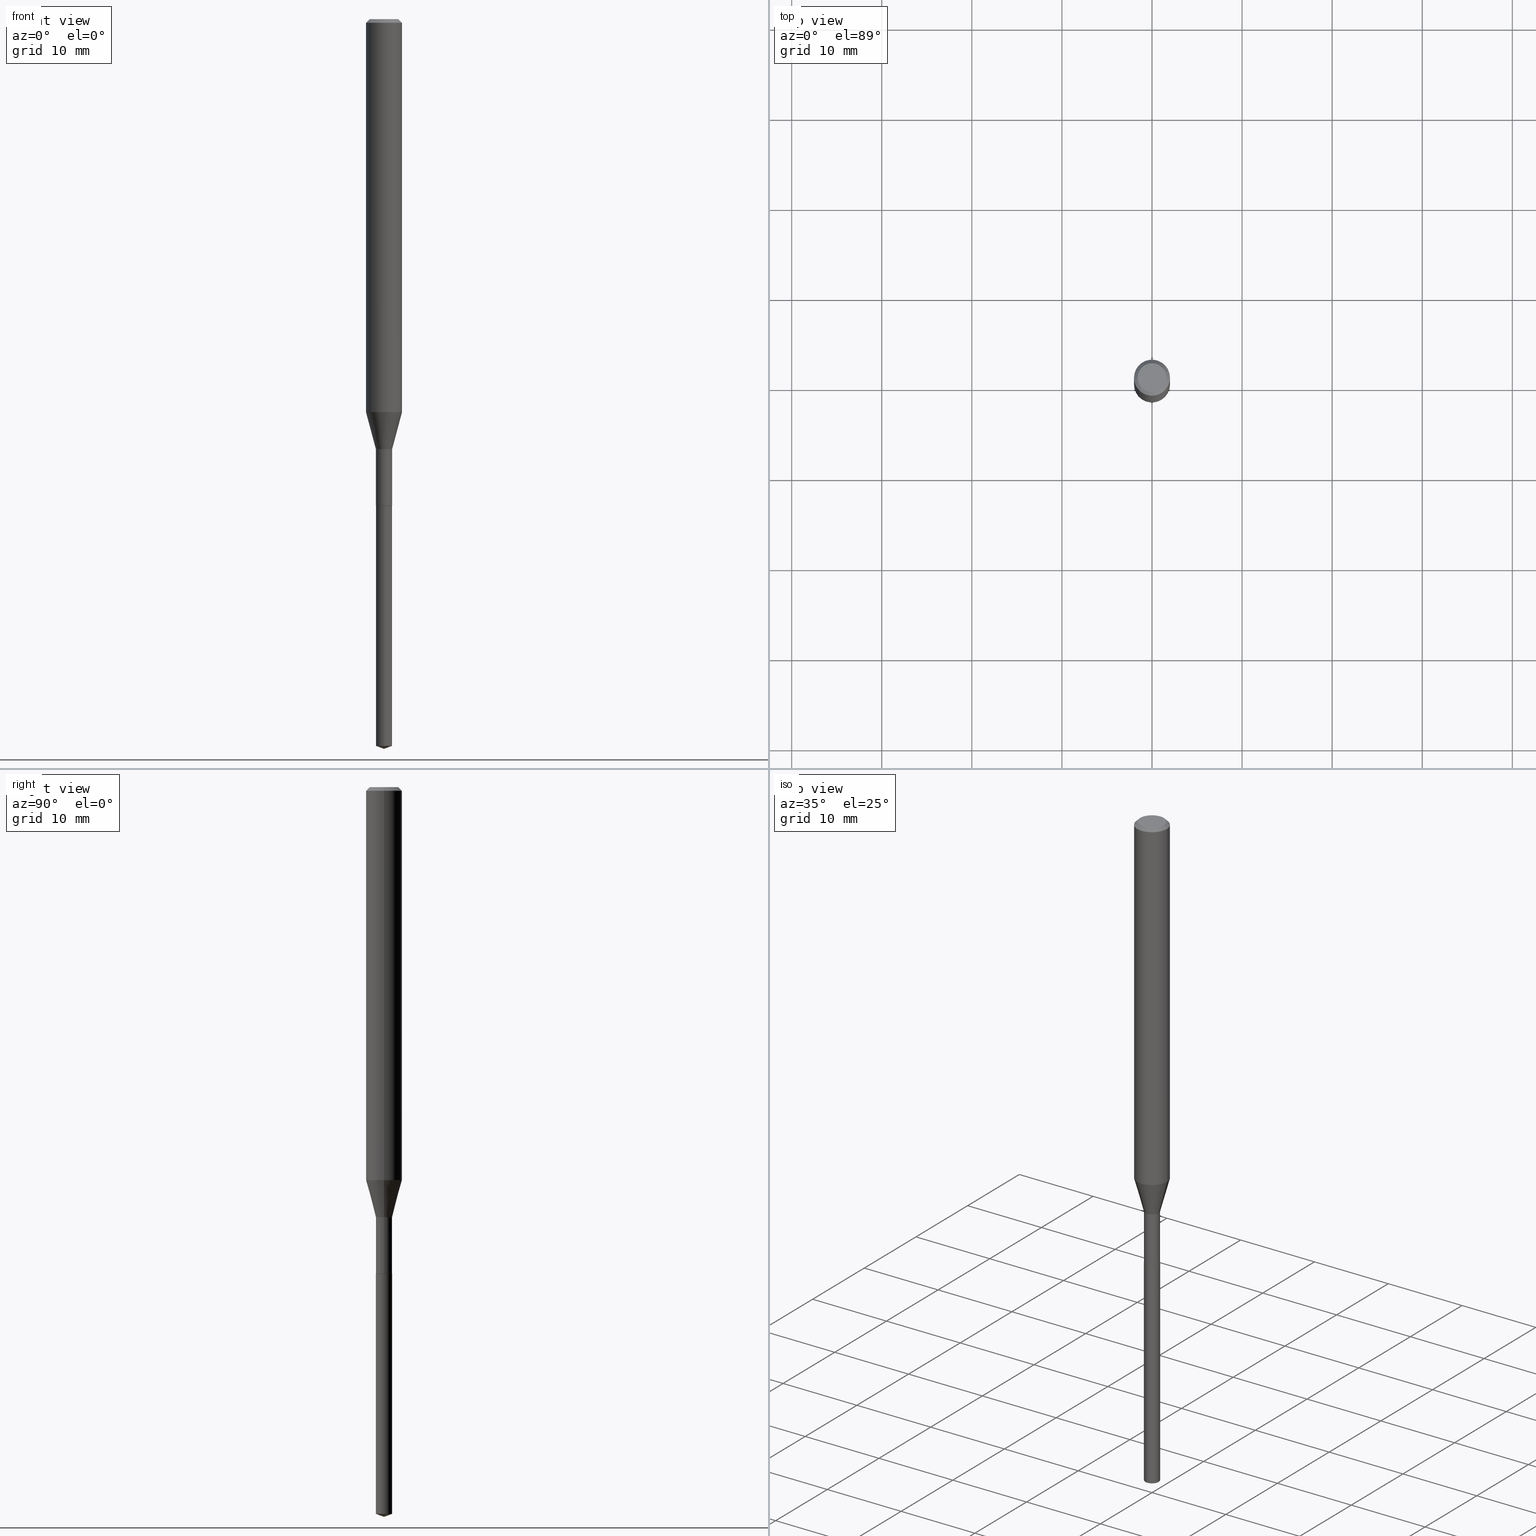
[diagram: canonical four-view strip — front | top / right | iso, engineering-drawing reading convention]
A machine part, canonical four-view strip (front | top / right | iso — engineering-drawing reading convention). The complete STEP part file that produces these views, byte-faithful:
ISO-10303-21;
HEADER;
FILE_DESCRIPTION (( 'STEP AP203' ),
    '1' );
FILE_NAME ('06039.STEP',
    '2024-04-23T19:06:44',
    ( '' ),
    ( '' ),
    'SwSTEP 2.0',
    'SolidWorks 2023',
    '' );
FILE_SCHEMA (( 'CONFIG_CONTROL_DESIGN' ));
ENDSEC;

DATA;
#1 = CARTESIAN_POINT ( 'NONE',  ( 7.798569626278917475E-29, -1.113437751929719726E-14, -3.189000000000000501 ) ) ;
#2 = DIRECTION ( 'NONE',  ( -2.445468806185136597E-29, 3.491481338843145583E-15, 1.000000000000000000 ) ) ;
#3 = EDGE_LOOP ( 'NONE', ( #345, #153, #28, #176 ) ) ;
#4 = APPROVAL_PERSON_ORGANIZATION ( #390, #434, #246 ) ;
#5 =( NAMED_UNIT ( * ) PLANE_ANGLE_UNIT ( ) SI_UNIT ( $, .RADIAN. ) );
#6 = CIRCLE ( 'NONE', #240, 0.03495000000000000190 ) ;
#7 = PERSON_AND_ORGANIZATION_ROLE ( 'design_supplier' ) ;
#8 = ORIENTED_EDGE ( 'NONE', *, *, #288, .F. ) ;
#9 = DATE_AND_TIME ( #321, #356 ) ;
#10 = DIRECTION ( 'NONE',  ( 1.000000000000000000, -6.982962677686255667E-15, 0.000000000000000000 ) ) ;
#11 = ADVANCED_FACE ( 'NONE', ( #355 ), #347, .T. ) ;
#12 = CC_DESIGN_DATE_AND_TIME_ASSIGNMENT ( #208, #425, ( #377 ) ) ;
#13 = CALENDAR_DATE ( 2024, 23, 4 ) ;
#14 = DIRECTION ( 'NONE',  ( 0.7071067811866169617, -2.468850131082983996E-15, 0.7071067811864780728 ) ) ;
#15 = VECTOR ( 'NONE', #14, 39.37007874015748143 ) ;
#16 = AXIS2_PLACEMENT_3D ( 'NONE', #324, #400, #214 ) ;
#17 = CIRCLE ( 'NONE', #16, 0.03545000000000000234 ) ;
#18 = COORDINATED_UNIVERSAL_TIME_OFFSET ( 5, 0, .BEHIND. ) ;
#19 = ORIENTED_EDGE ( 'NONE', *, *, #60, .T. ) ;
#20 = CARTESIAN_POINT ( 'NONE',  ( 0.03544999999999999540, -7.668689612635083799E-15, -2.125500000000000167 ) ) ;
#21 = CC_DESIGN_APPROVAL ( #46, ( #377 ) ) ;
#22 = CARTESIAN_POINT ( 'NONE',  ( 5.199066681949600871E-29, -7.422889326380528208E-15, -2.126000000000000334 ) ) ;
#23 = AXIS2_PLACEMENT_3D ( 'NONE', #158, #121, #165 ) ;
#24 = EDGE_LOOP ( 'NONE', ( #276, #480, #443 ) ) ;
#25 = ADVANCED_FACE ( 'NONE', ( #401 ), #364, .T. ) ;
#26 = CARTESIAN_POINT ( 'NONE',  ( 0.06300000000000000044, -5.137332111354472216E-16, -3.855188123712532709E-18 ) ) ;
#27 = CARTESIAN_POINT ( 'NONE',  ( 5.199066681949600871E-29, -7.422889326380528208E-15, -2.126000000000000334 ) ) ;
#28 = ORIENTED_EDGE ( 'NONE', *, *, #171, .T. ) ;
#29 = LOCAL_TIME ( 15, 6, 44.00000000000000000, #195 ) ;
#30 = APPROVAL_PERSON_ORGANIZATION ( #90, #46, #160 ) ;
#31 = EDGE_CURVE ( 'NONE', #243, #56, #285, .T. ) ;
#32 = DIRECTION ( 'NONE',  ( 1.000000000000000000, -6.982962677686265922E-15, 0.000000000000000000 ) ) ;
#33 = CARTESIAN_POINT ( 'NONE',  ( 5.199066681949600871E-29, -7.422889326380528208E-15, -2.126000000000000334 ) ) ;
#34 = ORIENTED_EDGE ( 'NONE', *, *, #139, .T. ) ;
#35 = FACE_OUTER_BOUND ( 'NONE', #242, .T. ) ;
#36 = DIRECTION ( 'NONE',  ( 2.445468806185136597E-29, -3.491481338843145583E-15, -1.000000000000000000 ) ) ;
#37 = DIRECTION ( 'NONE',  ( -2.445497401336110162E-29, 3.491440388959416459E-15, 1.000000000000000000 ) ) ;
#38 = CONICAL_SURFACE ( 'NONE', #459, 0.07875000000000000056, 0.7853981633974452814 ) ;
#39 = ORIENTED_EDGE ( 'NONE', *, *, #396, .T. ) ;
#40 = SHAPE_DEFINITION_REPRESENTATION ( #275, #405 ) ;
#41 = DIRECTION ( 'NONE',  ( 2.438088387897960049E-29, -3.491481338843145188E-15, -1.000000000000000000 ) ) ;
#42 = EDGE_CURVE ( 'NONE', #150, #181, #413, .T. ) ;
#43 = CARTESIAN_POINT ( 'NONE',  ( 0.07875000000000000056, -5.952550484112880131E-16, -0.01575000000000009726 ) ) ;
#44 = CIRCLE ( 'NONE', #196, 0.07875000000000022260 ) ;
#45 = VECTOR ( 'NONE', #72, 39.37007874015748143 ) ;
#46 = APPROVAL ( #314, 'UNSPECIFIED' ) ;
#47 = COORDINATED_UNIVERSAL_TIME_OFFSET ( 5, 0, .BEHIND. ) ;
#48 = LINE ( 'NONE', #429, #255 ) ;
#49 = APPLICATION_PROTOCOL_DEFINITION ( 'international standard', 'config_control_design', 1994, #374 ) ;
#50 = ORGANIZATION ( 'UNSPECIFIED', 'UNSPECIFIED', '' ) ;
#51 = VECTOR ( 'NONE', #217, 39.37007874015748143 ) ;
#52 = AXIS2_PLACEMENT_3D ( 'NONE', #96, #281, #430 ) ;
#53 = CARTESIAN_POINT ( 'NONE',  ( 0.07875000000000000056, -6.048991419545733705E-16, -0.01575000000000009726 ) ) ;
#54 = EDGE_CURVE ( 'NONE', #465, #181, #48, .T. ) ;
#55 = AXIS2_PLACEMENT_3D ( 'NONE', #269, #418, #234 ) ;
#56 = VERTEX_POINT ( 'NONE', #323 ) ;
#57 = DIRECTION ( 'NONE',  ( 1.000000000000000000, -6.982962677686267499E-15, 4.876176775795936353E-29 ) ) ;
#58 = CC_DESIGN_PERSON_AND_ORGANIZATION_ASSIGNMENT ( #473, #7, ( #119 ) ) ;
#59 = DIRECTION ( 'NONE',  ( 1.000000000000000000, -6.982962677686262766E-15, 0.000000000000000000 ) ) ;
#60 = EDGE_CURVE ( 'NONE', #290, #150, #92, .T. ) ;
#61 = LINE ( 'NONE', #412, #51 ) ;
#62 = CIRCLE ( 'NONE', #117, 0.03544999999999999540 ) ;
#63 = ORIENTED_EDGE ( 'NONE', *, *, #60, .F. ) ;
#64 = FACE_OUTER_BOUND ( 'NONE', #458, .T. ) ;
#65 = DIRECTION ( 'NONE',  ( 1.000000000000000000, -6.982962677686265922E-15, 4.876176775795935793E-29 ) ) ;
#66 = CARTESIAN_POINT ( 'NONE',  ( 0.03495000000000000190, -7.666943871965663085E-15, -2.126000000000000334 ) ) ;
#67 = LOCAL_TIME ( 15, 6, 44.00000000000000000, #76 ) ;
#68 = VECTOR ( 'NONE', #132, 39.37007874015748143 ) ;
#69 = ADVANCED_FACE ( 'NONE', ( #83 ), #38, .T. ) ;
#70 = VERTEX_POINT ( 'NONE', #247 ) ;
#71 = DIRECTION ( 'NONE',  ( -2.445468806185136597E-29, 3.491481338843145583E-15, 1.000000000000000000 ) ) ;
#72 = DIRECTION ( 'NONE',  ( -6.561838499445191385E-15, -0.9396926207859057634, 0.3420201433256756518 ) ) ;
#73 = VERTEX_POINT ( 'NONE', #354 ) ;
#74 = APPROVAL_STATUS ( 'not_yet_approved' ) ;
#75 = ORIENTED_EDGE ( 'NONE', *, *, #348, .F. ) ;
#76 = COORDINATED_UNIVERSAL_TIME_OFFSET ( 5, 0, .BEHIND. ) ;
#77 = CARTESIAN_POINT ( 'NONE',  ( 5.197843947546509191E-29, -7.421143585711107494E-15, -2.125500000000000167 ) ) ;
#78 = LOCAL_TIME ( 15, 6, 44.00000000000000000, #47 ) ;
#79 = ORIENTED_EDGE ( 'NONE', *, *, #311, .T. ) ;
#80 = VECTOR ( 'NONE', #218, 39.37007874015748854 ) ;
#81 = ORIENTED_EDGE ( 'NONE', *, *, #42, .F. ) ;
#82 = APPROVAL_ROLE ( '' ) ;
#83 = FACE_OUTER_BOUND ( 'NONE', #236, .T. ) ;
#84 = ORIENTED_EDGE ( 'NONE', *, *, #238, .F. ) ;
#85 = LINE ( 'NONE', #43, #197 ) ;
#86 = APPROVAL_DATE_TIME ( #202, #414 ) ;
#87 = PERSON ( 'UNSPECIFIED', 'UNSPECIFIED', 'UNSPECIFIED', ('UNSPECIFIED'), ('UNSPECIFIED'), ('UNSPECIFIED') ) ;
#88 = DIRECTION ( 'NONE',  ( -2.445468806185136597E-29, 3.491481338843145583E-15, 1.000000000000000000 ) ) ;
#89 = CARTESIAN_POINT ( 'NONE',  ( -0.07875000000000000056, 4.949174797810136167E-16, -0.01575000000000009726 ) ) ;
#90 = PERSON_AND_ORGANIZATION ( #87, #50 ) ;
#91 = ORIENTED_EDGE ( 'NONE', *, *, #258, .F. ) ;
#92 = CIRCLE ( 'NONE', #487, 0.06300000000000000044 ) ;
#93 = EDGE_CURVE ( 'NONE', #380, #213, #97, .T. ) ;
#94 = DIRECTION ( 'NONE',  ( -2.445497401336110162E-29, 3.491440388959416459E-15, 1.000000000000000000 ) ) ;
#95 = EDGE_CURVE ( 'NONE', #330, #465, #156, .T. ) ;
#96 = CARTESIAN_POINT ( 'NONE',  ( -8.848079482988326472E-28, 1.263239925700539114E-13, 36.18107874015748138 ) ) ;
#97 = CIRCLE ( 'NONE', #417, 0.03495000000000000190 ) ;
#98 = CARTESIAN_POINT ( 'NONE',  ( -2.475460269239261638E-16, -0.03545000000000742696, -2.126000000000000334 ) ) ;
#99 = ORIENTED_EDGE ( 'NONE', *, *, #116, .T. ) ;
#100 = CARTESIAN_POINT ( 'NONE',  ( 0.03544999999999996071, -6.808737758878017220E-15, -1.879200000000000204 ) ) ;
#101 = DIRECTION ( 'NONE',  ( -6.982962677686265922E-15, -1.000000000000000000, 0.000000000000000000 ) ) ;
#102 = LINE ( 'NONE', #260, #435 ) ;
#103 = ORIENTED_EDGE ( 'NONE', *, *, #54, .T. ) ;
#104 = DIRECTION ( 'NONE',  ( -2.438088387897960049E-29, 3.491481338843145188E-15, 1.000000000000000000 ) ) ;
#105 = LINE ( 'NONE', #266, #441 ) ;
#106 = AXIS2_PLACEMENT_3D ( 'NONE', #155, #337, #301 ) ;
#107 = APPLICATION_CONTEXT ( 'configuration controlled 3d designs of mechanical parts and assemblies' ) ;
#108 = ORIENTED_EDGE ( 'NONE', *, *, #448, .F. ) ;
#109 = DIRECTION ( 'NONE',  ( -2.445468806185136597E-29, 3.491481338843145583E-15, 1.000000000000000000 ) ) ;
#110 = DIRECTION ( 'NONE',  ( -2.445497401336110162E-29, 3.491440388959416459E-15, 1.000000000000000000 ) ) ;
#111 = ORIENTED_EDGE ( 'NONE', *, *, #403, .F. ) ;
#112 = EDGE_CURVE ( 'NONE', #150, #290, #135, .T. ) ;
#113 = DIRECTION ( 'NONE',  ( -2.445497401336110162E-29, 3.491440388959416459E-15, 1.000000000000000000 ) ) ;
#114 = DIRECTION ( 'NONE',  ( 1.000000000000000000, -6.982962677686265922E-15, 0.000000000000000000 ) ) ;
#115 = DIRECTION ( 'NONE',  ( -0.7071067811865453523, 2.468850131082234184E-15, -0.7071067811865496822 ) ) ;
#116 = EDGE_CURVE ( 'NONE', #254, #237, #394, .T. ) ;
#117 = AXIS2_PLACEMENT_3D ( 'NONE', #77, #241, #10 ) ;
#118 = FACE_OUTER_BOUND ( 'NONE', #161, .T. ) ;
#119 = PRODUCT_DEFINITION_FORMATION_WITH_SPECIFIED_SOURCE ( 'ANY', '', #232, .NOT_KNOWN. ) ;
#120 = ORIENTED_EDGE ( 'NONE', *, *, #328, .F. ) ;
#121 = DIRECTION ( 'NONE',  ( -2.445468806185136597E-29, 3.491481338843145583E-15, 1.000000000000000000 ) ) ;
#122 = APPLICATION_PROTOCOL_DEFINITION ( 'international standard', 'config_control_design', 1994, #107 ) ;
#123 = ADVANCED_FACE ( 'NONE', ( #283 ), #233, .T. ) ;
#124 = ORIENTED_EDGE ( 'NONE', *, *, #42, .T. ) ;
#125 = PERSON_AND_ORGANIZATION ( #87, #50 ) ;
#126 = CARTESIAN_POINT ( 'NONE',  ( -0.07875000000000022260, -5.437423624557511400E-15, -1.717602200032267268 ) ) ;
#127 = EDGE_LOOP ( 'NONE', ( #91, #201, #75 ) ) ;
#128 = PERSON_AND_ORGANIZATION_ROLE ( 'design_owner' ) ;
#129 = DIRECTION ( 'NONE',  ( 1.000000000000000000, -6.982962677686265922E-15, 4.875905316334701673E-29 ) ) ;
#130 = FACE_OUTER_BOUND ( 'NONE', #212, .T. ) ;
#131 = CALENDAR_DATE ( 2024, 23, 4 ) ;
#132 = DIRECTION ( 'NONE',  ( -2.445497401336109882E-29, 3.491440388959416459E-15, 1.000000000000000000 ) ) ;
#133 = ADVANCED_FACE ( 'NONE', ( #152 ), #317, .T. ) ;
#134 = AXIS2_PLACEMENT_3D ( 'NONE', #483, #141, #57 ) ;
#135 = CIRCLE ( 'NONE', #191, 0.06300000000000000044 ) ;
#136 = LINE ( 'NONE', #402, #80 ) ;
#137 = ORIENTED_EDGE ( 'NONE', *, *, #403, .T. ) ;
#138 = LENGTH_MEASURE_WITH_UNIT ( LENGTH_MEASURE( 0.02539999999999999897 ), #476 );
#139 = EDGE_CURVE ( 'NONE', #361, #482, #61, .T. ) ;
#140 =( CONVERSION_BASED_UNIT ( 'INCH', #138 ) LENGTH_UNIT ( ) NAMED_UNIT ( #227 ) );
#141 = DIRECTION ( 'NONE',  ( -2.445468806185136597E-29, 3.491481338843145583E-15, 1.000000000000000000 ) ) ;
#142 = CC_DESIGN_SECURITY_CLASSIFICATION ( #270, ( #119 ) ) ;
#143 = ORIENTED_EDGE ( 'NONE', *, *, #477, .T. ) ;
#144 = CARTESIAN_POINT ( 'NONE',  ( 5.199066681949600871E-29, -7.422889326380528208E-15, -2.126000000000000334 ) ) ;
#145 = EDGE_CURVE ( 'NONE', #286, #254, #256, .T. ) ;
#146 = DIRECTION ( 'NONE',  ( -2.445468806185136597E-29, 3.491481338843145583E-15, 1.000000000000000000 ) ) ;
#147 = EDGE_LOOP ( 'NONE', ( #79, #103, #469, #239 ) ) ;
#148 = CLOSED_SHELL ( 'NONE', ( #334, #272, #257, #229, #264 ) ) ;
#149 = DIRECTION ( 'NONE',  ( 1.000000000000000000, -6.982962677686265133E-15, 4.876176775795935793E-29 ) ) ;
#150 = VERTEX_POINT ( 'NONE', #154 ) ;
#151 = EDGE_CURVE ( 'NONE', #213, #380, #6, .T. ) ;
#152 = FACE_OUTER_BOUND ( 'NONE', #183, .T. ) ;
#153 = ORIENTED_EDGE ( 'NONE', *, *, #439, .T. ) ;
#154 = CARTESIAN_POINT ( 'NONE',  ( -0.06300000000000000044, 4.674220642376242452E-16, -3.855188123719040041E-18 ) ) ;
#155 = CARTESIAN_POINT ( 'NONE',  ( 7.767076790679798130E-29, -1.108924129550469119E-14, -3.176097255195263092 ) ) ;
#156 = LINE ( 'NONE', #385, #307 ) ;
#157 = ORIENTED_EDGE ( 'NONE', *, *, #116, .F. ) ;
#158 = CARTESIAN_POINT ( 'NONE',  ( 5.197843947546509191E-29, -7.421143585711107494E-15, -2.125500000000000167 ) ) ;
#159 = AXIS2_PLACEMENT_3D ( 'NONE', #446, #113, #101 ) ;
#160 = APPROVAL_ROLE ( '' ) ;
#161 = EDGE_LOOP ( 'NONE', ( #423, #19 ) ) ;
#162 = DIRECTION ( 'NONE',  ( -2.445468806185136597E-29, 3.491481338843145583E-15, 1.000000000000000000 ) ) ;
#163 = SECURITY_CLASSIFICATION_LEVEL ( 'unclassified' ) ;
#164 = DIRECTION ( 'NONE',  ( 1.000000000000000000, -6.982962677686262766E-15, 0.000000000000000000 ) ) ;
#165 = DIRECTION ( 'NONE',  ( 1.000000000000000000, -6.982962677686255667E-15, 0.000000000000000000 ) ) ;
#166 = CIRCLE ( 'NONE', #404, 0.03544999999999996071 ) ;
#167 = PERSON_AND_ORGANIZATION ( #87, #50 ) ;
#168 = DIRECTION ( 'NONE',  ( -1.000000000000000000, 6.982962677686265922E-15, 0.000000000000000000 ) ) ;
#169 = ORIENTED_EDGE ( 'NONE', *, *, #311, .F. ) ;
#170 = DIRECTION ( 'NONE',  ( -2.445468806185136597E-29, 3.491481338843145583E-15, 1.000000000000000000 ) ) ;
#171 = EDGE_CURVE ( 'NONE', #243, #73, #449, .T. ) ;
#172 = CIRCLE ( 'NONE', #478, 0.07875000000000022260 ) ;
#173 = DIRECTION ( 'NONE',  ( -0.7071067811866169617, 7.493145998870605018E-15, 0.7071067811864780728 ) ) ;
#174 = DIRECTION ( 'NONE',  ( 1.000000000000000000, -6.982962677686267499E-15, 0.000000000000000000 ) ) ;
#175 = PRODUCT_RELATED_PRODUCT_CATEGORY ( 'detail', '', ( #232 ) ) ;
#176 = ORIENTED_EDGE ( 'NONE', *, *, #182, .F. ) ;
#177 = CARTESIAN_POINT ( 'NONE',  ( 3.851613369741614361E-31, -5.499083108677988307E-17, -0.01575000000000009726 ) ) ;
#178 = DIRECTION ( 'NONE',  ( -2.445497401336110162E-29, 3.491440388959416459E-15, 1.000000000000000000 ) ) ;
#179 = AXIS2_PLACEMENT_3D ( 'NONE', #393, #428, #277 ) ;
#180 = AXIS2_PLACEMENT_3D ( 'NONE', #177, #331, #315 ) ;
#181 = VERTEX_POINT ( 'NONE', #336 ) ;
#182 = EDGE_CURVE ( 'NONE', #330, #73, #166, .T. ) ;
#183 = EDGE_LOOP ( 'NONE', ( #63, #421, #224, #81 ) ) ;
#184 = CYLINDRICAL_SURFACE ( 'NONE', #211, 0.03544999999999998153 ) ;
#185 = ORIENTED_EDGE ( 'NONE', *, *, #467, .T. ) ;
#186 = ADVANCED_FACE ( 'NONE', ( #375 ), #410, .T. ) ;
#187 = DIRECTION ( 'NONE',  ( -2.445468806185136877E-29, 3.491481338843145188E-15, 1.000000000000000000 ) ) ;
#188 = DIRECTION ( 'NONE',  ( -2.445468806185136597E-29, 3.491481338843145583E-15, 1.000000000000000000 ) ) ;
#189 = ORIENTED_EDGE ( 'NONE', *, *, #95, .T. ) ;
#190 = CC_DESIGN_PERSON_AND_ORGANIZATION_ASSIGNMENT ( #350, #352, ( #377 ) ) ;
#191 = AXIS2_PLACEMENT_3D ( 'NONE', #472, #304, #129 ) ;
#192 = DIRECTION ( 'NONE',  ( -2.445468806185136597E-29, 3.491481338843145583E-15, 1.000000000000000000 ) ) ;
#193 = ORIENTED_EDGE ( 'NONE', *, *, #151, .F. ) ;
#194 = CARTESIAN_POINT ( 'NONE',  ( -2.475460269239261638E-16, -0.03545000000000742696, -2.126000000000000334 ) ) ;
#195 = COORDINATED_UNIVERSAL_TIME_OFFSET ( 5, 0, .BEHIND. ) ;
#196 = AXIS2_PLACEMENT_3D ( 'NONE', #203, #88, #32 ) ;
#197 = VECTOR ( 'NONE', #475, 39.37007874015748143 ) ;
#198 =( NAMED_UNIT ( * ) SI_UNIT ( $, .STERADIAN. ) SOLID_ANGLE_UNIT ( ) );
#199 = ORIENTED_EDGE ( 'NONE', *, *, #238, .T. ) ;
#200 = ORIENTED_EDGE ( 'NONE', *, *, #396, .F. ) ;
#201 = ORIENTED_EDGE ( 'NONE', *, *, #145, .T. ) ;
#202 = DATE_AND_TIME ( #131, #78 ) ;
#203 = CARTESIAN_POINT ( 'NONE',  ( 4.200342601613872805E-29, -5.996976028968592568E-15, -1.717602200032267268 ) ) ;
#204 = DIRECTION ( 'NONE',  ( 1.000000000000000000, -6.982962677686265922E-15, 4.875905316334701673E-29 ) ) ;
#205 = ORIENTED_EDGE ( 'NONE', *, *, #244, .F. ) ;
#206 = AXIS2_PLACEMENT_3D ( 'NONE', #353, #162, #164 ) ;
#207 = EDGE_CURVE ( 'NONE', #56, #330, #105, .T. ) ;
#208 = DATE_AND_TIME ( #13, #67 ) ;
#209 = CARTESIAN_POINT ( 'NONE',  ( 0.03495000000000000190, -7.666943871965663085E-15, -2.126000000000000334 ) ) ;
#210 = DIRECTION ( 'NONE',  ( 1.000000000000000000, -6.982962677686267499E-15, 0.000000000000000000 ) ) ;
#211 = AXIS2_PLACEMENT_3D ( 'NONE', #293, #146, #411 ) ;
#212 = EDGE_LOOP ( 'NONE', ( #245, #199 ) ) ;
#213 = VERTEX_POINT ( 'NONE', #453 ) ;
#214 = DIRECTION ( 'NONE',  ( -6.982962677686265922E-15, -1.000000000000000000, 0.000000000000000000 ) ) ;
#215 = ADVANCED_FACE ( 'NONE', ( #369 ), #184, .T. ) ;
#216 = DIRECTION ( 'NONE',  ( -2.445468806185136597E-29, 3.491481338843145583E-15, 1.000000000000000000 ) ) ;
#217 = DIRECTION ( 'NONE',  ( -2.445468806185136877E-29, 3.491481338843145188E-15, 1.000000000000000000 ) ) ;
#218 = DIRECTION ( 'NONE',  ( 6.676917655467957874E-15, 0.9396926207859082059, 0.3420201433256690460 ) ) ;
#219 = CARTESIAN_POINT ( 'NONE',  ( 7.798691212860857286E-29, -1.113420340039158063E-14, -3.189000000000000501 ) ) ;
#220 = CARTESIAN_POINT ( 'NONE',  ( 4.595524980583109418E-29, -6.561191731954039337E-15, -1.879200000000000204 ) ) ;
#221 = PLANE ( 'NONE',  #373 ) ;
#222 = ADVANCED_FACE ( 'NONE', ( #64 ), #228, .T. ) ;
#223 = CARTESIAN_POINT ( 'NONE',  ( 5.199066681949600871E-29, -7.422889326380528208E-15, -2.126000000000000334 ) ) ;
#224 = ORIENTED_EDGE ( 'NONE', *, *, #306, .T. ) ;
#225 = CC_DESIGN_APPROVAL ( #414, ( #119 ) ) ;
#226 = VECTOR ( 'NONE', #115, 39.37007874015748143 ) ;
#227 = DIMENSIONAL_EXPONENTS ( 1.000000000000000000, 0.000000000000000000, 0.000000000000000000, 0.000000000000000000, 0.000000000000000000, 0.000000000000000000, 0.000000000000000000 ) ;
#228 = CYLINDRICAL_SURFACE ( 'NONE', #235, 0.03544999999999998153 ) ;
#229 = ADVANCED_FACE ( 'NONE', ( #35 ), #299, .T. ) ;
#230 = CARTESIAN_POINT ( 'NONE',  ( -0.03544999999999996071, -6.739280259005617242E-15, -1.879200000000000204 ) ) ;
#231 = DIRECTION ( 'NONE',  ( -2.445468806185136597E-29, 3.491481338843145583E-15, 1.000000000000000000 ) ) ;
#232 = PRODUCT ( '06039', '06039', '', ( #318 ) ) ;
#233 = CYLINDRICAL_SURFACE ( 'NONE', #372, 0.07875000000000011158 ) ;
#234 = DIRECTION ( 'NONE',  ( 1.000000000000000000, -6.982962677686262766E-15, 0.000000000000000000 ) ) ;
#235 = AXIS2_PLACEMENT_3D ( 'NONE', #485, #231, #149 ) ;
#236 = EDGE_LOOP ( 'NONE', ( #205, #436, #124, #39 ) ) ;
#237 = VERTEX_POINT ( 'NONE', #98 ) ;
#238 = EDGE_CURVE ( 'NONE', #70, #237, #389, .T. ) ;
#239 = ORIENTED_EDGE ( 'NONE', *, *, #139, .F. ) ;
#240 = AXIS2_PLACEMENT_3D ( 'NONE', #454, #109, #174 ) ;
#241 = DIRECTION ( 'NONE',  ( -2.445468806185136597E-29, 3.491481338843145583E-15, 1.000000000000000000 ) ) ;
#242 = EDGE_LOOP ( 'NONE', ( #294, #300, #99, #84 ) ) ;
#243 = VERTEX_POINT ( 'NONE', #20 ) ;
#244 = EDGE_CURVE ( 'NONE', #290, #482, #85, .T. ) ;
#245 = ORIENTED_EDGE ( 'NONE', *, *, #328, .T. ) ;
#246 = APPROVAL_ROLE ( '' ) ;
#247 = CARTESIAN_POINT ( 'NONE',  ( 2.518873998270333339E-16, 0.03544999999999258466, -2.126000000000000334 ) ) ;
#248 = CC_DESIGN_PERSON_AND_ORGANIZATION_ASSIGNMENT ( #167, #462, ( #270 ) ) ;
#249 = AXIS2_PLACEMENT_3D ( 'NONE', #22, #366, #481 ) ;
#250 = VECTOR ( 'NONE', #187, 39.37007874015748143 ) ;
#251 =( GEOMETRIC_REPRESENTATION_CONTEXT ( 3 ) GLOBAL_UNCERTAINTY_ASSIGNED_CONTEXT ( ( #325 ) ) GLOBAL_UNIT_ASSIGNED_CONTEXT ( ( #140, #5, #198 ) ) REPRESENTATION_CONTEXT ( 'NONE', 'WORKASPACE' ) );
#252 = EDGE_CURVE ( 'NONE', #254, #387, #17, .T. ) ;
#253 = CARTESIAN_POINT ( 'NONE',  ( 4.595524980583109418E-29, -6.561191731954039337E-15, -1.879200000000000204 ) ) ;
#254 = VERTEX_POINT ( 'NONE', #440 ) ;
#255 = VECTOR ( 'NONE', #460, 39.37007874015748143 ) ;
#256 = LINE ( 'NONE', #1, #45 ) ;
#257 = ADVANCED_FACE ( 'NONE', ( #320 ), #452, .T. ) ;
#258 = EDGE_CURVE ( 'NONE', #286, #387, #136, .T. ) ;
#259 = DIRECTION ( 'NONE',  ( -6.982962677686265922E-15, -1.000000000000000000, 0.000000000000000000 ) ) ;
#260 = CARTESIAN_POINT ( 'NONE',  ( 2.518873998270074987E-16, 0.03544999999999257773, -2.126000000000000334 ) ) ;
#261 = CARTESIAN_POINT ( 'NONE',  ( 0.03544999999999998153, -2.475460269239779821E-16, 1.728604667019658389E-30 ) ) ;
#262 = DIRECTION ( 'NONE',  ( -2.445468806185136597E-29, 3.491481338843145583E-15, 1.000000000000000000 ) ) ;
#263 = CIRCLE ( 'NONE', #180, 0.07875000000000000056 ) ;
#264 = ADVANCED_FACE ( 'NONE', ( #130 ), #362, .F. ) ;
#265 = AXIS2_PLACEMENT_3D ( 'NONE', #316, #267, #333 ) ;
#266 = CARTESIAN_POINT ( 'NONE',  ( -0.03544999999999998153, 2.518873998269553846E-16, -1.743762489495363038E-30 ) ) ;
#267 = DIRECTION ( 'NONE',  ( 2.445468806185136597E-29, -3.491481338843145583E-15, -1.000000000000000000 ) ) ;
#268 = CARTESIAN_POINT ( 'NONE',  ( -0.03495000000000000190, -7.174554640232372933E-15, -2.126000000000000334 ) ) ;
#269 = CARTESIAN_POINT ( 'NONE',  ( 4.595524980583109418E-29, -6.561191731954039337E-15, -1.879200000000000204 ) ) ;
#270 = SECURITY_CLASSIFICATION ( '', '', #163 ) ;
#271 = PLANE ( 'NONE',  #419 ) ;
#272 = ADVANCED_FACE ( 'NONE', ( #287 ), #395, .T. ) ;
#273 = APPROVAL_STATUS ( 'not_yet_approved' ) ;
#274 = ORIENTED_EDGE ( 'NONE', *, *, #477, .F. ) ;
#275 = PRODUCT_DEFINITION_SHAPE ( 'NONE', 'NONE',  #377 ) ;
#276 = ORIENTED_EDGE ( 'NONE', *, *, #145, .F. ) ;
#277 = DIRECTION ( 'NONE',  ( 1.000000000000000000, 0.000000000000000000, 0.000000000000000000 ) ) ;
#278 = ORIENTED_EDGE ( 'NONE', *, *, #182, .T. ) ;
#279 = ADVANCED_FACE ( 'NONE', ( #292 ), #406, .T. ) ;
#280 = CALENDAR_DATE ( 2024, 23, 4 ) ;
#281 = DIRECTION ( 'NONE',  ( -2.445497401336110162E-29, 3.491440388959416459E-15, 1.000000000000000000 ) ) ;
#282 = FACE_OUTER_BOUND ( 'NONE', #399, .T. ) ;
#283 = FACE_OUTER_BOUND ( 'NONE', #147, .T. ) ;
#284 = DIRECTION ( 'NONE',  ( -6.982962677686266711E-15, -1.000000000000000000, 3.475157955500771490E-15 ) ) ;
#285 = CIRCLE ( 'NONE', #23, 0.03544999999999999540 ) ;
#286 = VERTEX_POINT ( 'NONE', #219 ) ;
#287 = FACE_OUTER_BOUND ( 'NONE', #24, .T. ) ;
#288 = EDGE_CURVE ( 'NONE', #73, #361, #445, .T. ) ;
#289 = LOCAL_TIME ( 15, 6, 44.00000000000000000, #470 ) ;
#290 = VERTEX_POINT ( 'NONE', #26 ) ;
#291 = AXIS2_PLACEMENT_3D ( 'NONE', #27, #178, #447 ) ;
#292 = FACE_OUTER_BOUND ( 'NONE', #392, .T. ) ;
#293 = CARTESIAN_POINT ( 'NONE',  ( 0.000000000000000000, 0.000000000000000000, 0.000000000000000000 ) ) ;
#294 = ORIENTED_EDGE ( 'NONE', *, *, #467, .F. ) ;
#295 = ORIENTED_EDGE ( 'NONE', *, *, #93, .T. ) ;
#296 = EDGE_LOOP ( 'NONE', ( #426, #343, #143, #367 ) ) ;
#297 = APPROVAL_PERSON_ORGANIZATION ( #344, #414, #82 ) ;
#298 = AXIS2_PLACEMENT_3D ( 'NONE', #327, #94, #284 ) ;
#299 = CYLINDRICAL_SURFACE ( 'NONE', #479, 0.03545000000000000234 ) ;
#300 = ORIENTED_EDGE ( 'NONE', *, *, #348, .T. ) ;
#301 = DIRECTION ( 'NONE',  ( -6.982962677686265922E-15, -1.000000000000000000, 0.000000000000000000 ) ) ;
#302 = CARTESIAN_POINT ( 'NONE',  ( 2.518873998270331367E-16, 0.03544999999998890705, -3.176097255195263092 ) ) ;
#303 = ORIENTED_EDGE ( 'NONE', *, *, #448, .T. ) ;
#304 = DIRECTION ( 'NONE',  ( -2.445468806185136597E-29, 3.491481338843145583E-15, 1.000000000000000000 ) ) ;
#305 = DIRECTION ( 'NONE',  ( 1.000000000000000000, -6.982962677686265922E-15, 0.000000000000000000 ) ) ;
#306 = EDGE_CURVE ( 'NONE', #482, #181, #263, .T. ) ;
#307 = VECTOR ( 'NONE', #474, 39.37007874015747433 ) ;
#308 = CC_DESIGN_APPROVAL ( #434, ( #270 ) ) ;
#309 = CARTESIAN_POINT ( 'NONE',  ( 3.851613369741614361E-31, -5.499083108677988307E-17, -0.01575000000000009726 ) ) ;
#310 = DATE_AND_TIME ( #432, #289 ) ;
#311 = EDGE_CURVE ( 'NONE', #361, #465, #44, .T. ) ;
#312 = ORIENTED_EDGE ( 'NONE', *, *, #171, .F. ) ;
#313 = EDGE_LOOP ( 'NONE', ( #303, #189, #169, #8 ) ) ;
#314 = APPROVAL_STATUS ( 'not_yet_approved' ) ;
#315 = DIRECTION ( 'NONE',  ( 1.000000000000000000, -6.982962677686265922E-15, 0.000000000000000000 ) ) ;
#316 = CARTESIAN_POINT ( 'NONE',  ( 3.851613369741614361E-31, -5.499083108677988307E-17, -0.01575000000000009726 ) ) ;
#317 = CONICAL_SURFACE ( 'NONE', #265, 0.07875000000000000056, 0.7853981633974452814 ) ;
#318 = MECHANICAL_CONTEXT ( 'NONE', #107, 'mechanical' ) ;
#319 = CARTESIAN_POINT ( 'NONE',  ( 5.199066681949600871E-29, -7.422889326380528208E-15, -2.126000000000000334 ) ) ;
#320 = FACE_OUTER_BOUND ( 'NONE', #127, .T. ) ;
#321 = CALENDAR_DATE ( 2024, 23, 4 ) ;
#322 = CARTESIAN_POINT ( 'NONE',  ( 5.199066681949600871E-29, -7.422889326380528208E-15, -2.126000000000000334 ) ) ;
#323 = CARTESIAN_POINT ( 'NONE',  ( -0.03544999999999999540, -6.739280259005617242E-15, -2.125500000000000167 ) ) ;
#324 = CARTESIAN_POINT ( 'NONE',  ( 7.767076790679798130E-29, -1.108924129550469119E-14, -3.176097255195263092 ) ) ;
#325 = UNCERTAINTY_MEASURE_WITH_UNIT (LENGTH_MEASURE( 1.000000000000000082E-05 ), #140, 'distance_accuracy_value', 'NONE');
#326 = DIRECTION ( 'NONE',  ( 1.000000000000000000, -6.982962677686262766E-15, 0.000000000000000000 ) ) ;
#327 = CARTESIAN_POINT ( 'NONE',  ( -8.848079482988326472E-28, 1.263239925700539114E-13, 36.18107874015748138 ) ) ;
#328 = EDGE_CURVE ( 'NONE', #237, #70, #363, .T. ) ;
#329 = CC_DESIGN_PERSON_AND_ORGANIZATION_ASSIGNMENT ( #422, #357, ( #119 ) ) ;
#330 = VERTEX_POINT ( 'NONE', #230 ) ;
#331 = DIRECTION ( 'NONE',  ( -2.445468806185136597E-29, 3.491481338843145583E-15, 1.000000000000000000 ) ) ;
#332 = VECTOR ( 'NONE', #368, 39.37007874015747433 ) ;
#333 = DIRECTION ( 'NONE',  ( -1.000000000000000000, 6.982962677686265922E-15, 0.000000000000000000 ) ) ;
#334 = ADVANCED_FACE ( 'NONE', ( #381 ), #341, .T. ) ;
#335 = DIRECTION ( 'NONE',  ( -2.445497401336109882E-29, 3.491440388959416459E-15, 1.000000000000000000 ) ) ;
#336 = CARTESIAN_POINT ( 'NONE',  ( -0.07875000000000000056, -2.466431025616605177E-15, -0.01575000000000009726 ) ) ;
#337 = DIRECTION ( 'NONE',  ( -2.445497401336110162E-29, 3.491440388959416459E-15, 1.000000000000000000 ) ) ;
#338 = DIRECTION ( 'NONE',  ( -2.445468806185136597E-29, 3.491481338843145583E-15, 1.000000000000000000 ) ) ;
#339 = DIRECTION ( 'NONE',  ( 1.000000000000000000, -6.982962677686267499E-15, 0.000000000000000000 ) ) ;
#340 = ORIENTED_EDGE ( 'NONE', *, *, #54, .F. ) ;
#341 = CYLINDRICAL_SURFACE ( 'NONE', #407, 0.03545000000000000234 ) ;
#342 = ADVANCED_FACE ( 'NONE', ( #490 ), #221, .F. ) ;
#343 = ORIENTED_EDGE ( 'NONE', *, *, #151, .T. ) ;
#344 = PERSON_AND_ORGANIZATION ( #87, #50 ) ;
#345 = ORIENTED_EDGE ( 'NONE', *, *, #207, .F. ) ;
#346 = CONICAL_SURFACE ( 'NONE', #438, 0.03495000000000000190, 0.7853981633975465337 ) ;
#347 = CONICAL_SURFACE ( 'NONE', #468, 0.03544999999999996071, 0.2617993877991500740 ) ;
#348 = EDGE_CURVE ( 'NONE', #387, #254, #397, .T. ) ;
#349 = DATE_AND_TIME ( #280, #29 ) ;
#350 = PERSON_AND_ORGANIZATION ( #87, #50 ) ;
#351 = ORIENTED_EDGE ( 'NONE', *, *, #359, .T. ) ;
#352 = PERSON_AND_ORGANIZATION_ROLE ( 'creator' ) ;
#353 = CARTESIAN_POINT ( 'NONE',  ( 4.595524980583109418E-29, -6.561191731954039337E-15, -1.879200000000000204 ) ) ;
#354 = CARTESIAN_POINT ( 'NONE',  ( 0.03544999999999996071, -6.808737758878017220E-15, -1.879200000000000204 ) ) ;
#355 = FACE_OUTER_BOUND ( 'NONE', #313, .T. ) ;
#356 = LOCAL_TIME ( 15, 6, 44.00000000000000000, #18 ) ;
#357 = PERSON_AND_ORGANIZATION_ROLE ( 'creator' ) ;
#358 = CARTESIAN_POINT ( 'NONE',  ( 3.851613369741614361E-31, -5.499083108677988307E-17, -0.01575000000000009726 ) ) ;
#359 = EDGE_CURVE ( 'NONE', #213, #56, #455, .T. ) ;
#360 = ORIENTED_EDGE ( 'NONE', *, *, #288, .T. ) ;
#361 = VERTEX_POINT ( 'NONE', #408 ) ;
#362 = PLANE ( 'NONE',  #249 ) ;
#363 = CIRCLE ( 'NONE', #159, 0.03545000000000000234 ) ;
#364 = CONICAL_SURFACE ( 'NONE', #55, 0.03544999999999996071, 0.2617993877991500740 ) ;
#365 = ORIENTED_EDGE ( 'NONE', *, *, #93, .F. ) ;
#366 = DIRECTION ( 'NONE',  ( 2.445497401336109882E-29, -3.491440388959416459E-15, -1.000000000000000000 ) ) ;
#367 = ORIENTED_EDGE ( 'NONE', *, *, #439, .F. ) ;
#368 = DIRECTION ( 'NONE',  ( 0.2588190451025213501, 1.565188264969621968E-15, 0.9659258262890682012 ) ) ;
#369 = FACE_OUTER_BOUND ( 'NONE', #3, .T. ) ;
#370 = ORIENTED_EDGE ( 'NONE', *, *, #252, .T. ) ;
#371 = CARTESIAN_POINT ( 'NONE',  ( 5.199066681949600871E-29, -7.422889326380528208E-15, -2.126000000000000334 ) ) ;
#372 = AXIS2_PLACEMENT_3D ( 'NONE', #379, #188, #488 ) ;
#373 = AXIS2_PLACEMENT_3D ( 'NONE', #371, #104, #65 ) ;
#374 = APPLICATION_CONTEXT ( 'configuration controlled 3d designs of mechanical parts and assemblies' ) ;
#375 = FACE_OUTER_BOUND ( 'NONE', #296, .T. ) ;
#376 = EDGE_LOOP ( 'NONE', ( #370, #185, #120, #157 ) ) ;
#377 = PRODUCT_DEFINITION ( 'UNKNOWN', '', #119, #437 ) ;
#378 = ORIENTED_EDGE ( 'NONE', *, *, #31, .T. ) ;
#379 = CARTESIAN_POINT ( 'NONE',  ( 0.000000000000000000, 0.000000000000000000, 0.000000000000000000 ) ) ;
#380 = VERTEX_POINT ( 'NONE', #66 ) ;
#381 = FACE_OUTER_BOUND ( 'NONE', #376, .T. ) ;
#382 = AXIS2_PLACEMENT_3D ( 'NONE', #33, #338, #339 ) ;
#383 = CARTESIAN_POINT ( 'NONE',  ( 4.200342601613872805E-29, -5.996976028968592568E-15, -1.717602200032267268 ) ) ;
#384 = ORIENTED_EDGE ( 'NONE', *, *, #207, .T. ) ;
#385 = CARTESIAN_POINT ( 'NONE',  ( -0.03544999999999996071, -6.309304332127083952E-15, -1.879200000000000204 ) ) ;
#386 = APPROVAL_DATE_TIME ( #9, #434 ) ;
#387 = VERTEX_POINT ( 'NONE', #302 ) ;
#388 = VECTOR ( 'NONE', #173, 39.37007874015748143 ) ;
#389 = CIRCLE ( 'NONE', #291, 0.03545000000000000234 ) ;
#390 = PERSON_AND_ORGANIZATION ( #87, #50 ) ;
#391 = APPROVAL_DATE_TIME ( #349, #46 ) ;
#392 = EDGE_LOOP ( 'NONE', ( #340, #137, #34, #200 ) ) ;
#393 = CARTESIAN_POINT ( 'NONE',  ( 0.000000000000000000, 0.000000000000000000, 0.000000000000000000 ) ) ;
#394 = LINE ( 'NONE', #194, #68 ) ;
#395 = CONICAL_SURFACE ( 'NONE', #52, 108.1684023407318591, 1.221730476396026832 ) ;
#396 = EDGE_CURVE ( 'NONE', #181, #482, #461, .T. ) ;
#397 = CIRCLE ( 'NONE', #106, 0.03545000000000000234 ) ;
#398 = DIRECTION ( 'NONE',  ( 1.000000000000000000, -6.982962677686267499E-15, 0.000000000000000000 ) ) ;
#399 = EDGE_LOOP ( 'NONE', ( #295, #351, #431, #274 ) ) ;
#400 = DIRECTION ( 'NONE',  ( -2.445497401336110162E-29, 3.491440388959416459E-15, 1.000000000000000000 ) ) ;
#401 = FACE_OUTER_BOUND ( 'NONE', #416, .T. ) ;
#402 = CARTESIAN_POINT ( 'NONE',  ( 7.798692279031658456E-29, -1.113420340039158063E-14, -3.189000000000000501 ) ) ;
#403 = EDGE_CURVE ( 'NONE', #465, #361, #172, .T. ) ;
#404 = AXIS2_PLACEMENT_3D ( 'NONE', #220, #262, #59 ) ;
#405 = ADVANCED_BREP_SHAPE_REPRESENTATION ( '06039', ( #444, #433, #179 ), #251 ) ;
#406 = CYLINDRICAL_SURFACE ( 'NONE', #134, 0.07875000000000011158 ) ;
#407 = AXIS2_PLACEMENT_3D ( 'NONE', #144, #37, #259 ) ;
#408 = CARTESIAN_POINT ( 'NONE',  ( 0.07875000000000022260, -6.546884339836387492E-15, -1.717602200032267268 ) ) ;
#409 = DIRECTION ( 'NONE',  ( -2.445468806185136877E-29, 3.491481338843145188E-15, 1.000000000000000000 ) ) ;
#410 = CONICAL_SURFACE ( 'NONE', #382, 0.03495000000000000190, 0.7853981633975465337 ) ;
#411 = DIRECTION ( 'NONE',  ( 1.000000000000000000, -6.982962677686265133E-15, 4.876176775795935793E-29 ) ) ;
#412 = CARTESIAN_POINT ( 'NONE',  ( 0.07875000000000011158, -5.499083108677943318E-16, 3.839989210939305322E-30 ) ) ;
#413 = LINE ( 'NONE', #89, #226 ) ;
#414 = APPROVAL ( #273, 'UNSPECIFIED' ) ;
#415 = AXIS2_PLACEMENT_3D ( 'NONE', #309, #456, #114 ) ;
#416 = EDGE_LOOP ( 'NONE', ( #489, #278, #360, #111 ) ) ;
#417 = AXIS2_PLACEMENT_3D ( 'NONE', #319, #192, #210 ) ;
#418 = DIRECTION ( 'NONE',  ( -2.445468806185136597E-29, 3.491481338843145583E-15, 1.000000000000000000 ) ) ;
#419 = AXIS2_PLACEMENT_3D ( 'NONE', #420, #41, #424 ) ;
#420 = CARTESIAN_POINT ( 'NONE',  ( 4.713871149261278955E-47, -6.730158695841834933E-33, -1.927594061857933439E-18 ) ) ;
#421 = ORIENTED_EDGE ( 'NONE', *, *, #244, .T. ) ;
#422 = PERSON_AND_ORGANIZATION ( #87, #50 ) ;
#423 = ORIENTED_EDGE ( 'NONE', *, *, #112, .T. ) ;
#424 = DIRECTION ( 'NONE',  ( -1.000000000000000000, 6.982962677686265922E-15, -4.876176775795935793E-29 ) ) ;
#425 = DATE_TIME_ROLE ( 'creation_date' ) ;
#426 = ORIENTED_EDGE ( 'NONE', *, *, #359, .F. ) ;
#427 = ADVANCED_FACE ( 'NONE', ( #118 ), #271, .F. ) ;
#428 = DIRECTION ( 'NONE',  ( 0.000000000000000000, 0.000000000000000000, 1.000000000000000000 ) ) ;
#429 = CARTESIAN_POINT ( 'NONE',  ( -0.07875000000000011158, 5.595524044110796892E-16, -3.873661383575744098E-30 ) ) ;
#430 = DIRECTION ( 'NONE',  ( -6.982962677686266711E-15, -1.000000000000000000, 3.475157955500771490E-15 ) ) ;
#431 = ORIENTED_EDGE ( 'NONE', *, *, #31, .F. ) ;
#432 = CALENDAR_DATE ( 2024, 23, 4 ) ;
#433 = MANIFOLD_SOLID_BREP ( 'Body-Move/Copy2[2]', #486 ) ;
#434 = APPROVAL ( #74, 'UNSPECIFIED' ) ;
#435 = VECTOR ( 'NONE', #335, 39.37007874015748143 ) ;
#436 = ORIENTED_EDGE ( 'NONE', *, *, #112, .F. ) ;
#437 = DESIGN_CONTEXT ( 'detailed design', #374, 'design' ) ;
#438 = AXIS2_PLACEMENT_3D ( 'NONE', #322, #216, #398 ) ;
#439 = EDGE_CURVE ( 'NONE', #56, #243, #62, .T. ) ;
#440 = CARTESIAN_POINT ( 'NONE',  ( -2.475460269239004765E-16, -0.03545000000001109070, -3.176097255195263092 ) ) ;
#441 = VECTOR ( 'NONE', #409, 39.37007874015748143 ) ;
#442 = DIRECTION ( 'NONE',  ( -6.982962677686265922E-15, -1.000000000000000000, 0.000000000000000000 ) ) ;
#443 = ORIENTED_EDGE ( 'NONE', *, *, #252, .F. ) ;
#444 = MANIFOLD_SOLID_BREP ( 'Body-Move/Copy2[1]', #148 ) ;
#445 = LINE ( 'NONE', #100, #332 ) ;
#446 = CARTESIAN_POINT ( 'NONE',  ( 5.199066681949600871E-29, -7.422889326380528208E-15, -2.126000000000000334 ) ) ;
#447 = DIRECTION ( 'NONE',  ( -6.982962677686265922E-15, -1.000000000000000000, 0.000000000000000000 ) ) ;
#448 = EDGE_CURVE ( 'NONE', #73, #330, #451, .T. ) ;
#449 = LINE ( 'NONE', #261, #250 ) ;
#450 = EDGE_LOOP ( 'NONE', ( #365, #193 ) ) ;
#451 = CIRCLE ( 'NONE', #206, 0.03544999999999996071 ) ;
#452 = CONICAL_SURFACE ( 'NONE', #298, 108.1684023407318591, 1.221730476396026832 ) ;
#453 = CARTESIAN_POINT ( 'NONE',  ( -0.03495000000000000190, -7.171905413058262521E-15, -2.126000000000000334 ) ) ;
#454 = CARTESIAN_POINT ( 'NONE',  ( 5.199066681949600871E-29, -7.422889326380528208E-15, -2.126000000000000334 ) ) ;
#455 = LINE ( 'NONE', #268, #388 ) ;
#456 = DIRECTION ( 'NONE',  ( -2.445468806185136597E-29, 3.491481338843145583E-15, 1.000000000000000000 ) ) ;
#457 = CARTESIAN_POINT ( 'NONE',  ( 9.427742298522557911E-47, -1.346031739168366987E-32, -3.855188123715866879E-18 ) ) ;
#458 = EDGE_LOOP ( 'NONE', ( #378, #384, #108, #312 ) ) ;
#459 = AXIS2_PLACEMENT_3D ( 'NONE', #358, #36, #168 ) ;
#460 = DIRECTION ( 'NONE',  ( -2.445468806185136877E-29, 3.491481338843145188E-15, 1.000000000000000000 ) ) ;
#461 = CIRCLE ( 'NONE', #415, 0.07875000000000000056 ) ;
#462 = PERSON_AND_ORGANIZATION_ROLE ( 'classification_officer' ) ;
#463 = CC_DESIGN_PERSON_AND_ORGANIZATION_ASSIGNMENT ( #125, #128, ( #232 ) ) ;
#464 = DATE_TIME_ROLE ( 'classification_date' ) ;
#465 = VERTEX_POINT ( 'NONE', #126 ) ;
#466 = CC_DESIGN_DATE_AND_TIME_ASSIGNMENT ( #310, #464, ( #270 ) ) ;
#467 = EDGE_CURVE ( 'NONE', #387, #70, #102, .T. ) ;
#468 = AXIS2_PLACEMENT_3D ( 'NONE', #253, #170, #326 ) ;
#469 = ORIENTED_EDGE ( 'NONE', *, *, #306, .F. ) ;
#470 = COORDINATED_UNIVERSAL_TIME_OFFSET ( 5, 0, .BEHIND. ) ;
#471 = LINE ( 'NONE', #209, #15 ) ;
#472 = CARTESIAN_POINT ( 'NONE',  ( 9.427742298522557911E-47, -1.346031739168366987E-32, -3.855188123715866879E-18 ) ) ;
#473 = PERSON_AND_ORGANIZATION ( #87, #50 ) ;
#474 = DIRECTION ( 'NONE',  ( -0.2588190451025213501, 5.211531920934551042E-15, 0.9659258262890682012 ) ) ;
#475 = DIRECTION ( 'NONE',  ( 0.7071067811865453523, -7.319954787623248157E-15, -0.7071067811865496822 ) ) ;
#476 =( LENGTH_UNIT ( ) NAMED_UNIT ( * ) SI_UNIT ( $, .METRE. ) );
#477 = EDGE_CURVE ( 'NONE', #380, #243, #471, .T. ) ;
#478 = AXIS2_PLACEMENT_3D ( 'NONE', #383, #2, #305 ) ;
#479 = AXIS2_PLACEMENT_3D ( 'NONE', #223, #110, #442 ) ;
#480 = ORIENTED_EDGE ( 'NONE', *, *, #258, .T. ) ;
#481 = DIRECTION ( 'NONE',  ( 6.982962677686265922E-15, 1.000000000000000000, -3.491440388959416459E-15 ) ) ;
#482 = VERTEX_POINT ( 'NONE', #53 ) ;
#483 = CARTESIAN_POINT ( 'NONE',  ( 0.000000000000000000, 0.000000000000000000, 0.000000000000000000 ) ) ;
#484 = ADVANCED_FACE ( 'NONE', ( #282 ), #346, .T. ) ;
#485 = CARTESIAN_POINT ( 'NONE',  ( 0.000000000000000000, 0.000000000000000000, 0.000000000000000000 ) ) ;
#486 = CLOSED_SHELL ( 'NONE', ( #484, #133, #123, #11, #222, #215, #25, #279, #69, #427, #342, #186 ) ) ;
#487 = AXIS2_PLACEMENT_3D ( 'NONE', #457, #71, #204 ) ;
#488 = DIRECTION ( 'NONE',  ( 1.000000000000000000, -6.982962677686267499E-15, 4.876176775795936353E-29 ) ) ;
#489 = ORIENTED_EDGE ( 'NONE', *, *, #95, .F. ) ;
#490 = FACE_OUTER_BOUND ( 'NONE', #450, .T. ) ;
ENDSEC;
END-ISO-10303-21;
